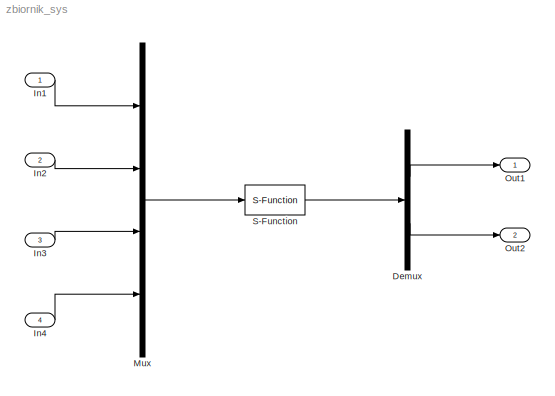
MODEL zbiornik_sys
KIND model
BLOCK [Demux] Demux
  DisplayOption = bar
  Outputs = 2
  Ports = [1, 2]
  SID = 10
BLOCK [Inport] In1
  IconDisplay = Port number
  SID = 1
BLOCK [Inport] In2
  IconDisplay = Port number
  Port = 2
  SID = 2
BLOCK [Inport] In3
  IconDisplay = Port number
  Port = 3
  SID = 3
BLOCK [Inport] In4
  IconDisplay = Port number
  Port = 4
  SID = 4
BLOCK [Mux] Mux
  DisplayOption = bar
  Ports = [4, 1]
  SID = 5
BLOCK [Outport] Out1
  IconDisplay = Port number
  SID = 7
BLOCK [Outport] Out2
  IconDisplay = Port number
  Port = 2
  SID = 8
BLOCK [S-Function] S-Function
  EnableBusSupport = off
  FunctionName = zbiornik_sfcn
  Parameters = V0 T0
  Ports = [1, 1]
  SFcnIsStateOwnerBlock = off
  SFunctionDeploymentMode = off
  SID = 9
LINE Demux:1 -> Out1:1
LINE Demux:2 -> Out2:1
LINE In1:1 -> Mux:1
LINE In2:1 -> Mux:2
LINE In3:1 -> Mux:3
LINE In4:1 -> Mux:4
LINE Mux:1 -> S-Function:1
LINE S-Function:1 -> Demux:1
